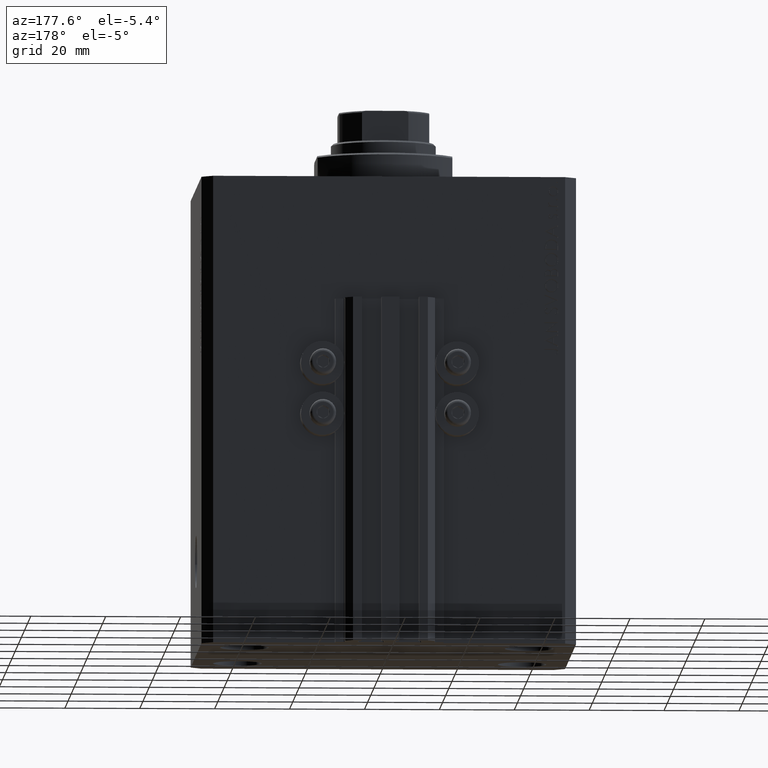
[diagram: clean part render]
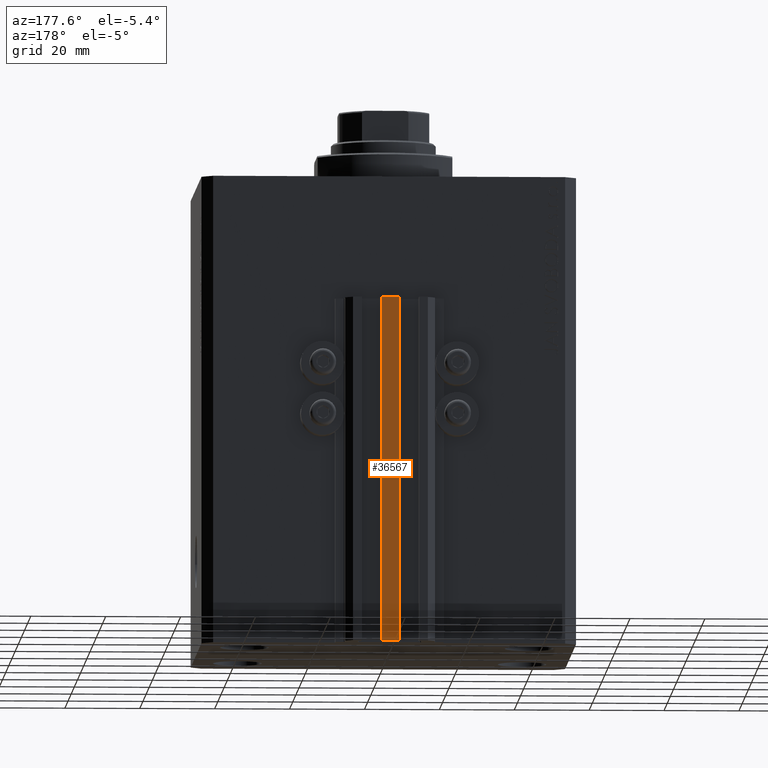
[diagram: same view with one face highlighted and labeled with its STEP entity id]
A machine part, auxiliary view. The second image highlights one B-rep face of the part: STEP entity #36567.
In plain terms, the highlighted planar face has unit normal (0, -1, 0).
Its self-contained STEP definition (entity closure, byte-faithful):
#1837 = VERTEX_POINT ( 'NONE', #4934 ) ;
#3804 = LINE ( 'NONE', #19037, #13573 ) ;
#4527 = FACE_OUTER_BOUND ( 'NONE', #18635, .T. ) ;
#4934 = CARTESIAN_POINT ( 'NONE',  ( -2.350000000000003642, 45.50000000000000711, -33.00000000000000000 ) ) ;
#6017 = ORIENTED_EDGE ( 'NONE', *, *, #30781, .T. ) ;
#6297 = EDGE_CURVE ( 'NONE', #26027, #38427, #34470, .T. ) ;
#6440 = CARTESIAN_POINT ( 'NONE',  ( -2.350000000000003642, 45.50000000000000711, -125.0000000000000000 ) ) ;
#7234 = ORIENTED_EDGE ( 'NONE', *, *, #35831, .T. ) ;
#7634 = DIRECTION ( 'NONE',  ( 0.000000000000000000, -0.000000000000000000, -1.000000000000000000 ) ) ;
#8318 = VECTOR ( 'NONE', #20984, 1000.000000000000000 ) ;
#11189 = DIRECTION ( 'NONE',  ( 0.000000000000000000, 0.000000000000000000, 1.000000000000000000 ) ) ;
#12751 = CARTESIAN_POINT ( 'NONE',  ( 2.349999999999999645, 45.50000000000000711, -125.0000000000000000 ) ) ;
#13573 = VECTOR ( 'NONE', #11189, 1000.000000000000000 ) ;
#13905 = ORIENTED_EDGE ( 'NONE', *, *, #6297, .F. ) ;
#17908 = CARTESIAN_POINT ( 'NONE',  ( 2.349999999999999645, 45.50000000000000711, -33.00000000000000000 ) ) ;
#18635 = EDGE_LOOP ( 'NONE', ( #7234, #13905, #25553, #6017 ) ) ;
#18822 = PLANE ( 'NONE',  #27844 ) ;
#19037 = CARTESIAN_POINT ( 'NONE',  ( -2.350000000000003642, 45.50000000000000711, -125.0000000000000000 ) ) ;
#20984 = DIRECTION ( 'NONE',  ( 1.000000000000000000, 0.000000000000000000, 0.000000000000000000 ) ) ;
#24469 = DIRECTION ( 'NONE',  ( 1.000000000000000000, 0.000000000000000000, 0.000000000000000000 ) ) ;
#25553 = ORIENTED_EDGE ( 'NONE', *, *, #34426, .F. ) ;
#25773 = DIRECTION ( 'NONE',  ( 0.000000000000000000, -1.000000000000000000, 0.000000000000000000 ) ) ;
#26027 = VERTEX_POINT ( 'NONE', #46141 ) ;
#26235 = CARTESIAN_POINT ( 'NONE',  ( -2.350000000000003642, 45.50000000000000711, -125.0000000000000000 ) ) ;
#27065 = DIRECTION ( 'NONE',  ( 0.000000000000000000, 0.000000000000000000, 1.000000000000000000 ) ) ;
#27844 = AXIS2_PLACEMENT_3D ( 'NONE', #26235, #25773, #7634 ) ;
#28063 = LINE ( 'NONE', #35921, #43090 ) ;
#30781 = EDGE_CURVE ( 'NONE', #36907, #1837, #3804, .T. ) ;
#34426 = EDGE_CURVE ( 'NONE', #36907, #26027, #39152, .T. ) ;
#34470 = LINE ( 'NONE', #12751, #35111 ) ;
#35111 = VECTOR ( 'NONE', #27065, 1000.000000000000000 ) ;
#35831 = EDGE_CURVE ( 'NONE', #1837, #38427, #28063, .T. ) ;
#35921 = CARTESIAN_POINT ( 'NONE',  ( -2.350000000000003642, 45.50000000000000711, -33.00000000000000000 ) ) ;
#36567 = ADVANCED_FACE ( 'NONE', ( #4527 ), #18822, .F. ) ;
#36907 = VERTEX_POINT ( 'NONE', #44507 ) ;
#38427 = VERTEX_POINT ( 'NONE', #17908 ) ;
#39152 = LINE ( 'NONE', #6440, #8318 ) ;
#43090 = VECTOR ( 'NONE', #24469, 1000.000000000000000 ) ;
#44507 = CARTESIAN_POINT ( 'NONE',  ( -2.350000000000003642, 45.50000000000000711, -125.0000000000000000 ) ) ;
#46141 = CARTESIAN_POINT ( 'NONE',  ( 2.349999999999999645, 45.50000000000000711, -125.0000000000000000 ) ) ;